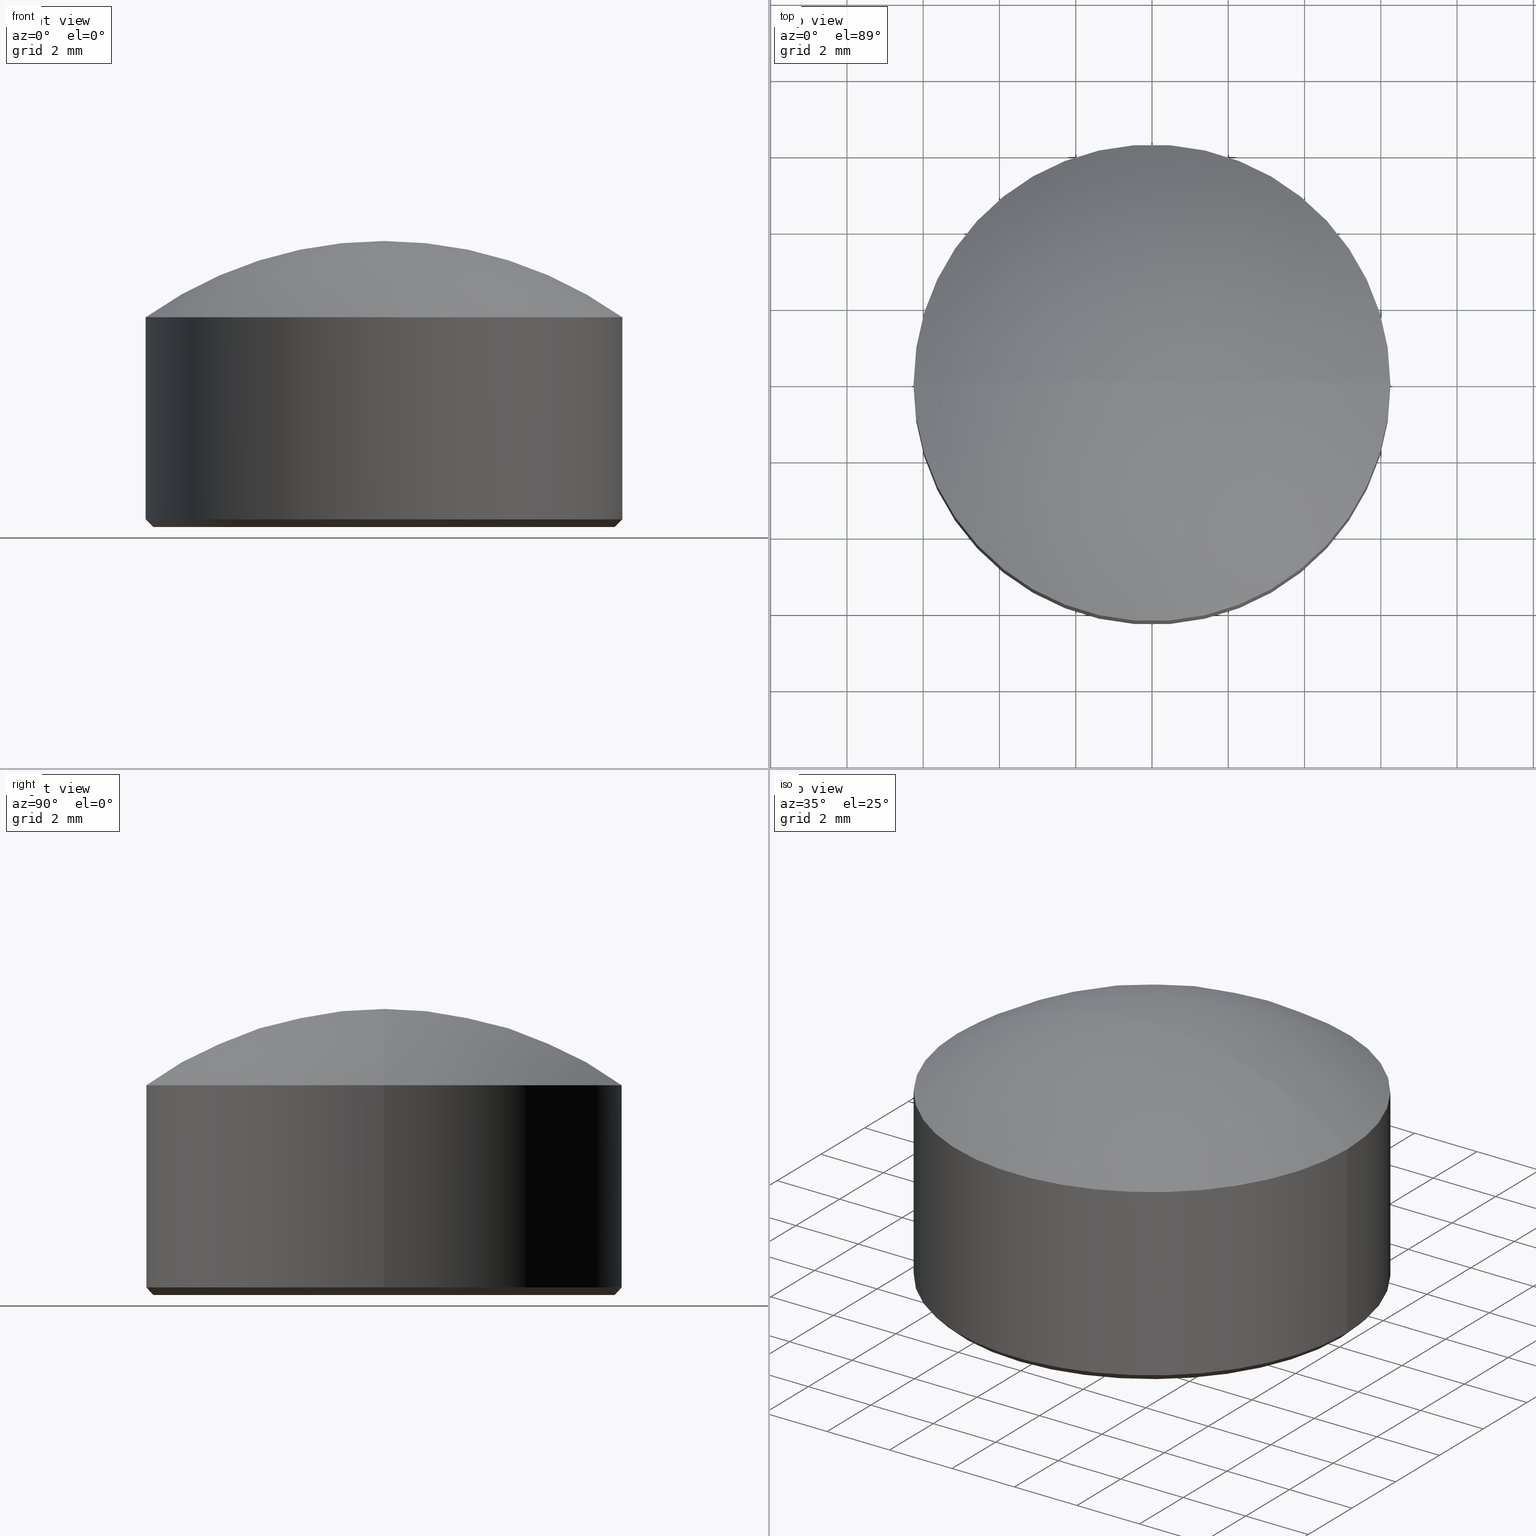
[diagram: canonical four-view strip — front | top / right | iso, engineering-drawing reading convention]
A machine part, canonical four-view strip (front | top / right | iso — engineering-drawing reading convention). The complete STEP part file that produces these views, byte-faithful:
ISO-10303-21;
HEADER;
FILE_DESCRIPTION (( 'STEP AP214' ),
    '1' );
FILE_NAME ('GLA11-012-012-H-VIS.STEP',
    '2024-08-09T08:34:39',
    ( 'Windows User' ),
    ( 'P R C' ),
    'SwSTEP 2.0',
    'SolidWorks 2022',
    '' );
FILE_SCHEMA (( 'AUTOMOTIVE_DESIGN' ));
ENDSEC;

DATA;
#1 = APPLICATION_PROTOCOL_DEFINITION ( 'draft international standard', 'automotive_design', 1998, #9 ) ;
#2 = SURFACE_STYLE_USAGE ( .BOTH. , #178 ) ;
#3 = CARTESIAN_POINT ( 'NONE',  ( 6.250000000000000000, 0.000000000000000000, 0.2000000000000005107 ) ) ;
#4 = VECTOR ( 'NONE', #149, 1000.000000000000000 ) ;
#5 =( LENGTH_UNIT ( ) NAMED_UNIT ( * ) SI_UNIT ( .MILLI., .METRE. ) );
#6 = ORIENTED_EDGE ( 'NONE', *, *, #203, .F. ) ;
#7 = AXIS2_PLACEMENT_3D ( 'NONE', #179, #197, #32 ) ;
#8 = LINE ( 'NONE', #141, #136 ) ;
#9 = APPLICATION_CONTEXT ( 'automotive_design' ) ;
#10 = EDGE_CURVE ( 'NONE', #21, #160, #102, .T. ) ;
#11 = DIRECTION ( 'NONE',  ( 1.000000000000000000, 0.000000000000000000, 0.000000000000000000 ) ) ;
#12 = ORIENTED_EDGE ( 'NONE', *, *, #146, .F. ) ;
#13 = DIRECTION ( 'NONE',  ( -0.7071067811865489050, 8.659560562354951347E-17, 0.7071067811865460184 ) ) ;
#14 = PLANE ( 'NONE',  #69 ) ;
#15 =( NAMED_UNIT ( * ) PLANE_ANGLE_UNIT ( ) SI_UNIT ( $, .RADIAN. ) );
#16 = LINE ( 'NONE', #3, #36 ) ;
#17 = ADVANCED_FACE ( 'NONE', ( #42 ), #96, .T. ) ;
#18 = AXIS2_PLACEMENT_3D ( 'NONE', #137, #188, #105 ) ;
#19 = AXIS2_PLACEMENT_3D ( 'NONE', #88, #128, #161 ) ;
#20 = APPLICATION_PROTOCOL_DEFINITION ( 'draft international standard', 'automotive_design', 1998, #173 ) ;
#21 = VERTEX_POINT ( 'NONE', #95 ) ;
#22 = SURFACE_STYLE_FILL_AREA ( #172 ) ;
#23 = CARTESIAN_POINT ( 'NONE',  ( 4.336808689942017736E-16, 0.000000000000000000, -3.265625000000002220 ) ) ;
#24 = ORIENTED_EDGE ( 'NONE', *, *, #70, .T. ) ;
#25 = ORIENTED_EDGE ( 'NONE', *, *, #85, .T. ) ;
#26 = CARTESIAN_POINT ( 'NONE',  ( 0.000000000000000000, 0.000000000000000000, 0.000000000000000000 ) ) ;
#27 = ADVANCED_FACE ( 'NONE', ( #97 ), #14, .F. ) ;
#28 = CONICAL_SURFACE ( 'NONE', #208, 6.250000000000000000, 0.7853981633974503884 ) ;
#29 = CARTESIAN_POINT ( 'NONE',  ( 4.336808689942017736E-16, 0.000000000000000000, -3.265625000000002220 ) ) ;
#30 = CIRCLE ( 'NONE', #132, 6.250000000000000000 ) ;
#31 = ADVANCED_FACE ( 'NONE', ( #133 ), #38, .T. ) ;
#32 = DIRECTION ( 'NONE',  ( 1.000000000000000000, 0.000000000000000000, 0.000000000000000000 ) ) ;
#33 = DIRECTION ( 'NONE',  ( -0.000000000000000000, -0.000000000000000000, 1.000000000000000000 ) ) ;
#34 = CARTESIAN_POINT ( 'NONE',  ( 6.250000000000000000, 7.654042494670957606E-16, 0.2000000000000005107 ) ) ;
#35 = COLOUR_RGB ( '',1.000000000000000000, 1.000000000000000000, 1.000000000000000000 ) ;
#36 = VECTOR ( 'NONE', #134, 1000.000000000000114 ) ;
#37 = SHAPE_DEFINITION_REPRESENTATION ( #170, #148 ) ;
#38 = CONICAL_SURFACE ( 'NONE', #120, 6.250000000000000000, 0.7853981633974503884 ) ;
#39 = DIRECTION ( 'NONE',  ( -1.000000000000000000, 0.000000000000000000, 0.000000000000000000 ) ) ;
#40 = DIRECTION ( 'NONE',  ( 0.000000000000000000, 1.000000000000000000, 0.000000000000000000 ) ) ;
#41 = DIRECTION ( 'NONE',  ( -0.000000000000000000, -0.000000000000000000, -1.000000000000000000 ) ) ;
#42 = FACE_OUTER_BOUND ( 'NONE', #74, .T. ) ;
#43 = EDGE_CURVE ( 'NONE', #145, #209, #163, .T. ) ;
#44 = DIRECTION ( 'NONE',  ( -0.000000000000000000, -0.000000000000000000, -1.000000000000000000 ) ) ;
#45 = ORIENTED_EDGE ( 'NONE', *, *, #70, .F. ) ;
#46 = CIRCLE ( 'NONE', #55, 10.76562500000000000 ) ;
#47 = FILL_AREA_STYLE_COLOUR ( '', #35 ) ;
#48 = ORIENTED_EDGE ( 'NONE', *, *, #60, .F. ) ;
#49 = FACE_OUTER_BOUND ( 'NONE', #59, .T. ) ;
#50 = AXIS2_PLACEMENT_3D ( 'NONE', #26, #44, #195 ) ;
#51 = AXIS2_PLACEMENT_3D ( 'NONE', #29, #98, #180 ) ;
#52 = CARTESIAN_POINT ( 'NONE',  ( 6.250000000000000000, 7.654042494670957606E-16, 5.500000000000000000 ) ) ;
#53 = EDGE_CURVE ( 'NONE', #209, #121, #30, .T. ) ;
#54 = CYLINDRICAL_SURFACE ( 'NONE', #18, 6.250000000000000000 ) ;
#55 = AXIS2_PLACEMENT_3D ( 'NONE', #23, #156, #91 ) ;
#56 =( NAMED_UNIT ( * ) SI_UNIT ( $, .STERADIAN. ) SOLID_ANGLE_UNIT ( ) );
#57 = MECHANICAL_DESIGN_GEOMETRIC_PRESENTATION_REPRESENTATION (  '', ( #171 ), #214 ) ;
#58 = UNCERTAINTY_MEASURE_WITH_UNIT (LENGTH_MEASURE( 1.000000000000000082E-05 ), #5, 'distance_accuracy_value', 'NONE');
#59 = EDGE_LOOP ( 'NONE', ( #187, #196, #207, #45 ) ) ;
#60 = EDGE_CURVE ( 'NONE', #121, #209, #76, .T. ) ;
#61 = ORIENTED_EDGE ( 'NONE', *, *, #146, .T. ) ;
#62 = CARTESIAN_POINT ( 'NONE',  ( 4.336808689942017736E-16, 0.000000000000000000, -3.265625000000002220 ) ) ;
#63 = EDGE_LOOP ( 'NONE', ( #104, #93, #24, #48 ) ) ;
#64 = SPHERICAL_SURFACE ( 'NONE', #112, 10.76562500000000000 ) ;
#65 = AXIS2_PLACEMENT_3D ( 'NONE', #147, #41, #216 ) ;
#66 = DIRECTION ( 'NONE',  ( 0.000000000000000000, 0.000000000000000000, 1.000000000000000000 ) ) ;
#67 = COLOUR_RGB ( '',1.000000000000000000, 1.000000000000000000, 1.000000000000000000 ) ;
#68 = DIRECTION ( 'NONE',  ( 1.000000000000000000, 0.000000000000000000, -0.000000000000000000 ) ) ;
#69 = AXIS2_PLACEMENT_3D ( 'NONE', #177, #66, #68 ) ;
#70 = EDGE_CURVE ( 'NONE', #125, #209, #16, .T. ) ;
#71 = DIRECTION ( 'NONE',  ( 0.000000000000000000, 0.000000000000000000, 1.000000000000000000 ) ) ;
#72 = DIRECTION ( 'NONE',  ( 1.000000000000000000, 0.000000000000000000, 0.000000000000000000 ) ) ;
#73 = ADVANCED_FACE ( 'NONE', ( #202 ), #54, .T. ) ;
#74 = EDGE_LOOP ( 'NONE', ( #89, #61, #212 ) ) ;
#75 = PRESENTATION_LAYER_ASSIGNMENT (  '', '', ( #171 ) ) ;
#76 = CIRCLE ( 'NONE', #7, 6.250000000000000000 ) ;
#77 = DIRECTION ( 'NONE',  ( -0.000000000000000000, -1.000000000000000000, 0.000000000000000000 ) ) ;
#78 = ORIENTED_EDGE ( 'NONE', *, *, #203, .T. ) ;
#79 = LINE ( 'NONE', #122, #154 ) ;
#80 = EDGE_LOOP ( 'NONE', ( #107, #82, #78, #155 ) ) ;
#81 = SURFACE_STYLE_USAGE ( .BOTH. , #139 ) ;
#82 = ORIENTED_EDGE ( 'NONE', *, *, #101, .F. ) ;
#83 = FACE_OUTER_BOUND ( 'NONE', #194, .T. ) ;
#84 = DIRECTION ( 'NONE',  ( -0.000000000000000000, -0.000000000000000000, 1.000000000000000000 ) ) ;
#85 = EDGE_CURVE ( 'NONE', #125, #211, #198, .T. ) ;
#86 =( GEOMETRIC_REPRESENTATION_CONTEXT ( 3 ) GLOBAL_UNCERTAINTY_ASSIGNED_CONTEXT ( ( #159 ) ) GLOBAL_UNIT_ASSIGNED_CONTEXT ( ( #114, #169, #204 ) ) REPRESENTATION_CONTEXT ( 'NONE', 'WORKASPACE' ) );
#87 = ORIENTED_EDGE ( 'NONE', *, *, #101, .T. ) ;
#88 = CARTESIAN_POINT ( 'NONE',  ( 0.000000000000000000, 0.000000000000000000, 5.500000000000000000 ) ) ;
#89 = ORIENTED_EDGE ( 'NONE', *, *, #165, .F. ) ;
#90 = STYLED_ITEM ( 'NONE', ( #135 ), #148 ) ;
#91 = DIRECTION ( 'NONE',  ( 1.000000000000000000, -1.224646799147353207E-16, 0.000000000000000000 ) ) ;
#92 = DIRECTION ( 'NONE',  ( -0.000000000000000000, -0.000000000000000000, 1.000000000000000000 ) ) ;
#93 = ORIENTED_EDGE ( 'NONE', *, *, #85, .F. ) ;
#94 = CARTESIAN_POINT ( 'NONE',  ( 6.250000000000000000, 7.654042494670957606E-16, 5.500000000000000000 ) ) ;
#95 = CARTESIAN_POINT ( 'NONE',  ( -6.250000000000000000, 0.000000000000000000, 5.500000000000000000 ) ) ;
#96 = SPHERICAL_SURFACE ( 'NONE', #51, 10.76562500000000000 ) ;
#97 = FACE_OUTER_BOUND ( 'NONE', #162, .T. ) ;
#98 = DIRECTION ( 'NONE',  ( -0.000000000000000000, -1.000000000000000000, 0.000000000000000000 ) ) ;
#99 = CARTESIAN_POINT ( 'NONE',  ( -6.049999999999998934, 7.531577814756221078E-16, 0.000000000000000000 ) ) ;
#100 = CIRCLE ( 'NONE', #119, 6.250000000000000000 ) ;
#101 = EDGE_CURVE ( 'NONE', #21, #145, #100, .T. ) ;
#102 = CIRCLE ( 'NONE', #199, 10.76562500000000000 ) ;
#103 = CARTESIAN_POINT ( 'NONE',  ( -2.255235408593345021E-16, 0.000000000000000000, 7.499999999999999112 ) ) ;
#104 = ORIENTED_EDGE ( 'NONE', *, *, #186, .F. ) ;
#105 = DIRECTION ( 'NONE',  ( -1.000000000000000000, 0.000000000000000000, 0.000000000000000000 ) ) ;
#106 = DIRECTION ( 'NONE',  ( -0.000000000000000000, -0.000000000000000000, -1.000000000000000000 ) ) ;
#107 = ORIENTED_EDGE ( 'NONE', *, *, #43, .F. ) ;
#108 = PRODUCT_DEFINITION_FORMATION_WITH_SPECIFIED_SOURCE ( '�κ�', '', #184, .NOT_KNOWN. ) ;
#109 =( NAMED_UNIT ( * ) PLANE_ANGLE_UNIT ( ) SI_UNIT ( $, .RADIAN. ) );
#110 = CARTESIAN_POINT ( 'NONE',  ( -6.250000000000000000, 0.000000000000000000, 0.2000000000000005107 ) ) ;
#111 = CARTESIAN_POINT ( 'NONE',  ( 0.000000000000000000, 0.000000000000000000, 0.2000000000000005107 ) ) ;
#112 = AXIS2_PLACEMENT_3D ( 'NONE', #62, #77, #39 ) ;
#113 = CARTESIAN_POINT ( 'NONE',  ( 0.000000000000000000, 0.000000000000000000, 0.2000000000000005107 ) ) ;
#114 =( LENGTH_UNIT ( ) NAMED_UNIT ( * ) SI_UNIT ( .MILLI., .METRE. ) );
#115 = CARTESIAN_POINT ( 'NONE',  ( 0.000000000000000000, 0.000000000000000000, 5.500000000000000000 ) ) ;
#116 = ADVANCED_FACE ( 'NONE', ( #49 ), #28, .T. ) ;
#117 = PRESENTATION_LAYER_ASSIGNMENT (  '', '', ( #90 ) ) ;
#118 = DIRECTION ( 'NONE',  ( 1.000000000000000000, 0.000000000000000000, 0.000000000000000000 ) ) ;
#119 = AXIS2_PLACEMENT_3D ( 'NONE', #192, #190, #118 ) ;
#120 = AXIS2_PLACEMENT_3D ( 'NONE', #111, #33, #200 ) ;
#121 = VERTEX_POINT ( 'NONE', #110 ) ;
#122 = CARTESIAN_POINT ( 'NONE',  ( -6.250000000000000000, 7.654042494670957606E-16, 0.2000000000000005107 ) ) ;
#123 = CARTESIAN_POINT ( 'NONE',  ( 4.336808689942017736E-16, 0.000000000000000000, -3.265625000000002220 ) ) ;
#124 = CARTESIAN_POINT ( 'NONE',  ( 6.049999999999998934, 0.000000000000000000, 0.000000000000000000 ) ) ;
#125 = VERTEX_POINT ( 'NONE', #124 ) ;
#126 = ADVANCED_FACE ( 'NONE', ( #83 ), #64, .T. ) ;
#127 = FACE_OUTER_BOUND ( 'NONE', #80, .T. ) ;
#128 = DIRECTION ( 'NONE',  ( 0.000000000000000000, 0.000000000000000000, 1.000000000000000000 ) ) ;
#129 = ORIENTED_EDGE ( 'NONE', *, *, #191, .T. ) ;
#130 = DIRECTION ( 'NONE',  ( 1.000000000000000000, 0.000000000000000000, 0.000000000000000000 ) ) ;
#131 = FILL_AREA_STYLE_COLOUR ( '', #67 ) ;
#132 = AXIS2_PLACEMENT_3D ( 'NONE', #113, #84, #130 ) ;
#133 = FACE_OUTER_BOUND ( 'NONE', #63, .T. ) ;
#134 = DIRECTION ( 'NONE',  ( 0.7071067811865489050, 0.000000000000000000, 0.7071067811865460184 ) ) ;
#135 = PRESENTATION_STYLE_ASSIGNMENT (( #2 ) ) ;
#136 = VECTOR ( 'NONE', #106, 1000.000000000000000 ) ;
#137 = CARTESIAN_POINT ( 'NONE',  ( 0.000000000000000000, 0.000000000000000000, 5.500000000000000000 ) ) ;
#138 = CLOSED_SHELL ( 'NONE', ( #116, #126, #73, #206, #27, #17, #31 ) ) ;
#139 = SURFACE_SIDE_STYLE ('',( #22 ) ) ;
#140 = ORIENTED_EDGE ( 'NONE', *, *, #165, .T. ) ;
#141 = CARTESIAN_POINT ( 'NONE',  ( -6.250000000000000000, 0.000000000000000000, 5.500000000000000000 ) ) ;
#142 = ORIENTED_EDGE ( 'NONE', *, *, #10, .F. ) ;
#143 = PRODUCT_DEFINITION_CONTEXT ( 'detailed design', #173, 'design' ) ;
#144 = PRESENTATION_STYLE_ASSIGNMENT (( #81 ) ) ;
#145 = VERTEX_POINT ( 'NONE', #94 ) ;
#146 = EDGE_CURVE ( 'NONE', #145, #21, #151, .T. ) ;
#147 = CARTESIAN_POINT ( 'NONE',  ( 0.000000000000000000, 0.000000000000000000, 0.000000000000000000 ) ) ;
#148 = ADVANCED_BREP_SHAPE_REPRESENTATION ( 'GLA11-012-012-H-VIS', ( #182, #205 ), #157 ) ;
#149 = DIRECTION ( 'NONE',  ( -0.000000000000000000, -0.000000000000000000, -1.000000000000000000 ) ) ;
#150 = FILL_AREA_STYLE ('',( #131 ) ) ;
#151 = CIRCLE ( 'NONE', #19, 6.250000000000000000 ) ;
#152 = PRODUCT_CONTEXT ( 'NONE', #9, 'mechanical' ) ;
#153 = CARTESIAN_POINT ( 'NONE',  ( 0.000000000000000000, 0.000000000000000000, 0.000000000000000000 ) ) ;
#154 = VECTOR ( 'NONE', #13, 1000.000000000000114 ) ;
#155 = ORIENTED_EDGE ( 'NONE', *, *, #60, .T. ) ;
#156 = DIRECTION ( 'NONE',  ( -1.224646799147353207E-16, -1.000000000000000000, -0.000000000000000000 ) ) ;
#157 =( GEOMETRIC_REPRESENTATION_CONTEXT ( 3 ) GLOBAL_UNCERTAINTY_ASSIGNED_CONTEXT ( ( #174 ) ) GLOBAL_UNIT_ASSIGNED_CONTEXT ( ( #167, #15, #56 ) ) REPRESENTATION_CONTEXT ( 'NONE', 'WORKASPACE' ) );
#158 = ORIENTED_EDGE ( 'NONE', *, *, #43, .T. ) ;
#159 = UNCERTAINTY_MEASURE_WITH_UNIT (LENGTH_MEASURE( 1.000000000000000082E-05 ), #114, 'distance_accuracy_value', 'NONE');
#160 = VERTEX_POINT ( 'NONE', #103 ) ;
#161 = DIRECTION ( 'NONE',  ( 1.000000000000000000, 0.000000000000000000, 0.000000000000000000 ) ) ;
#162 = EDGE_LOOP ( 'NONE', ( #25, #129 ) ) ;
#163 = LINE ( 'NONE', #52, #4 ) ;
#164 = DIRECTION ( 'NONE',  ( -0.000000000000000000, -0.000000000000000000, -1.000000000000000000 ) ) ;
#165 = EDGE_CURVE ( 'NONE', #145, #160, #46, .T. ) ;
#166 = CIRCLE ( 'NONE', #50, 6.049999999999998934 ) ;
#167 =( LENGTH_UNIT ( ) NAMED_UNIT ( * ) SI_UNIT ( .MILLI., .METRE. ) );
#168 = PRODUCT_RELATED_PRODUCT_CATEGORY ( 'part', '', ( #184 ) ) ;
#169 =( NAMED_UNIT ( * ) PLANE_ANGLE_UNIT ( ) SI_UNIT ( $, .RADIAN. ) );
#170 = PRODUCT_DEFINITION_SHAPE ( 'NONE', 'NONE',  #185 ) ;
#171 = STYLED_ITEM ( 'NONE', ( #144 ), #182 ) ;
#172 = FILL_AREA_STYLE ('',( #47 ) ) ;
#173 = APPLICATION_CONTEXT ( 'automotive_design' ) ;
#174 = UNCERTAINTY_MEASURE_WITH_UNIT (LENGTH_MEASURE( 1.000000000000000082E-05 ), #167, 'distance_accuracy_value', 'NONE');
#175 = CARTESIAN_POINT ( 'NONE',  ( 0.000000000000000000, 0.000000000000000000, 0.2000000000000005107 ) ) ;
#176 = ORIENTED_EDGE ( 'NONE', *, *, #53, .T. ) ;
#177 = CARTESIAN_POINT ( 'NONE',  ( 0.000000000000000000, 0.000000000000000000, 0.000000000000000000 ) ) ;
#178 = SURFACE_SIDE_STYLE ('',( #201 ) ) ;
#179 = CARTESIAN_POINT ( 'NONE',  ( 0.000000000000000000, 0.000000000000000000, 0.2000000000000005107 ) ) ;
#180 = DIRECTION ( 'NONE',  ( -1.000000000000000000, 0.000000000000000000, 0.000000000000000000 ) ) ;
#181 = AXIS2_PLACEMENT_3D ( 'NONE', #115, #164, #183 ) ;
#182 = MANIFOLD_SOLID_BREP ( '����1', #138 ) ;
#183 = DIRECTION ( 'NONE',  ( -1.000000000000000000, 0.000000000000000000, 0.000000000000000000 ) ) ;
#184 = PRODUCT ( 'GLA11-012-012-H-VIS', 'GLA11-012-012-H-VIS', '', ( #152 ) ) ;
#185 = PRODUCT_DEFINITION ( 'δ֪', '', #108, #143 ) ;
#186 = EDGE_CURVE ( 'NONE', #211, #121, #79, .T. ) ;
#187 = ORIENTED_EDGE ( 'NONE', *, *, #191, .F. ) ;
#188 = DIRECTION ( 'NONE',  ( -0.000000000000000000, -0.000000000000000000, -1.000000000000000000 ) ) ;
#189 = DIRECTION ( 'NONE',  ( 0.000000000000000000, 0.000000000000000000, 1.000000000000000000 ) ) ;
#190 = DIRECTION ( 'NONE',  ( 0.000000000000000000, 0.000000000000000000, 1.000000000000000000 ) ) ;
#191 = EDGE_CURVE ( 'NONE', #211, #125, #166, .T. ) ;
#192 = CARTESIAN_POINT ( 'NONE',  ( 0.000000000000000000, 0.000000000000000000, 5.500000000000000000 ) ) ;
#193 = MECHANICAL_DESIGN_GEOMETRIC_PRESENTATION_REPRESENTATION (  '', ( #90 ), #86 ) ;
#194 = EDGE_LOOP ( 'NONE', ( #87, #140, #142 ) ) ;
#195 = DIRECTION ( 'NONE',  ( 1.000000000000000000, 0.000000000000000000, 0.000000000000000000 ) ) ;
#196 = ORIENTED_EDGE ( 'NONE', *, *, #186, .T. ) ;
#197 = DIRECTION ( 'NONE',  ( -0.000000000000000000, -0.000000000000000000, 1.000000000000000000 ) ) ;
#198 = CIRCLE ( 'NONE', #65, 6.049999999999998934 ) ;
#199 = AXIS2_PLACEMENT_3D ( 'NONE', #123, #40, #189 ) ;
#200 = DIRECTION ( 'NONE',  ( 1.000000000000000000, 0.000000000000000000, 0.000000000000000000 ) ) ;
#201 = SURFACE_STYLE_FILL_AREA ( #150 ) ;
#202 = FACE_OUTER_BOUND ( 'NONE', #215, .T. ) ;
#203 = EDGE_CURVE ( 'NONE', #21, #121, #8, .T. ) ;
#204 =( NAMED_UNIT ( * ) SI_UNIT ( $, .STERADIAN. ) SOLID_ANGLE_UNIT ( ) );
#205 = AXIS2_PLACEMENT_3D ( 'NONE', #153, #71, #72 ) ;
#206 = ADVANCED_FACE ( 'NONE', ( #127 ), #210, .T. ) ;
#207 = ORIENTED_EDGE ( 'NONE', *, *, #53, .F. ) ;
#208 = AXIS2_PLACEMENT_3D ( 'NONE', #175, #92, #11 ) ;
#209 = VERTEX_POINT ( 'NONE', #34 ) ;
#210 = CYLINDRICAL_SURFACE ( 'NONE', #181, 6.250000000000000000 ) ;
#211 = VERTEX_POINT ( 'NONE', #99 ) ;
#212 = ORIENTED_EDGE ( 'NONE', *, *, #10, .T. ) ;
#213 =( NAMED_UNIT ( * ) SI_UNIT ( $, .STERADIAN. ) SOLID_ANGLE_UNIT ( ) );
#214 =( GEOMETRIC_REPRESENTATION_CONTEXT ( 3 ) GLOBAL_UNCERTAINTY_ASSIGNED_CONTEXT ( ( #58 ) ) GLOBAL_UNIT_ASSIGNED_CONTEXT ( ( #5, #109, #213 ) ) REPRESENTATION_CONTEXT ( 'NONE', 'WORKASPACE' ) );
#215 = EDGE_LOOP ( 'NONE', ( #12, #158, #176, #6 ) ) ;
#216 = DIRECTION ( 'NONE',  ( 1.000000000000000000, 0.000000000000000000, 0.000000000000000000 ) ) ;
ENDSEC;
END-ISO-10303-21;
